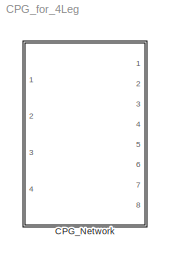
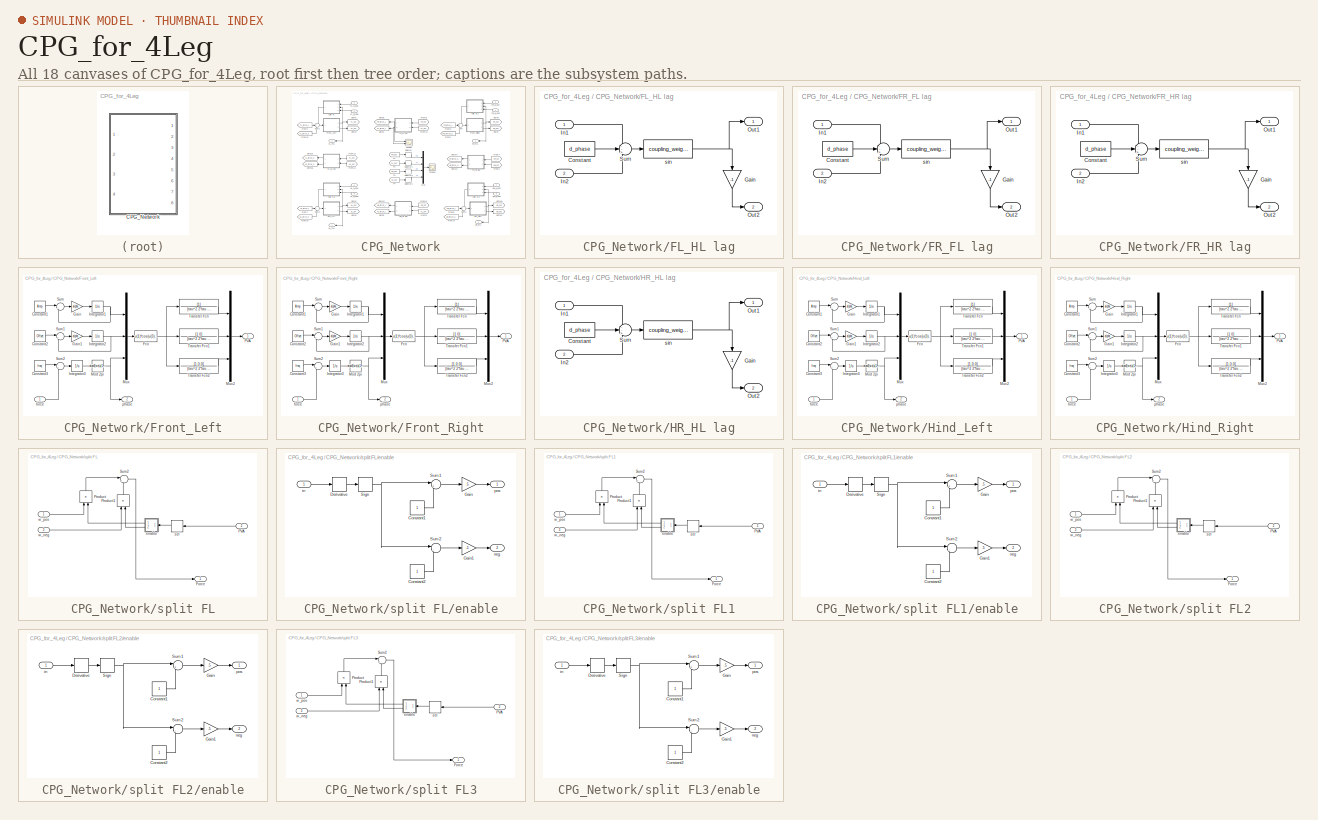
[diagram: thumbnail index - all 18 canvases of the model, root first then tree order]
MODEL CPG_for_4Leg
KIND model
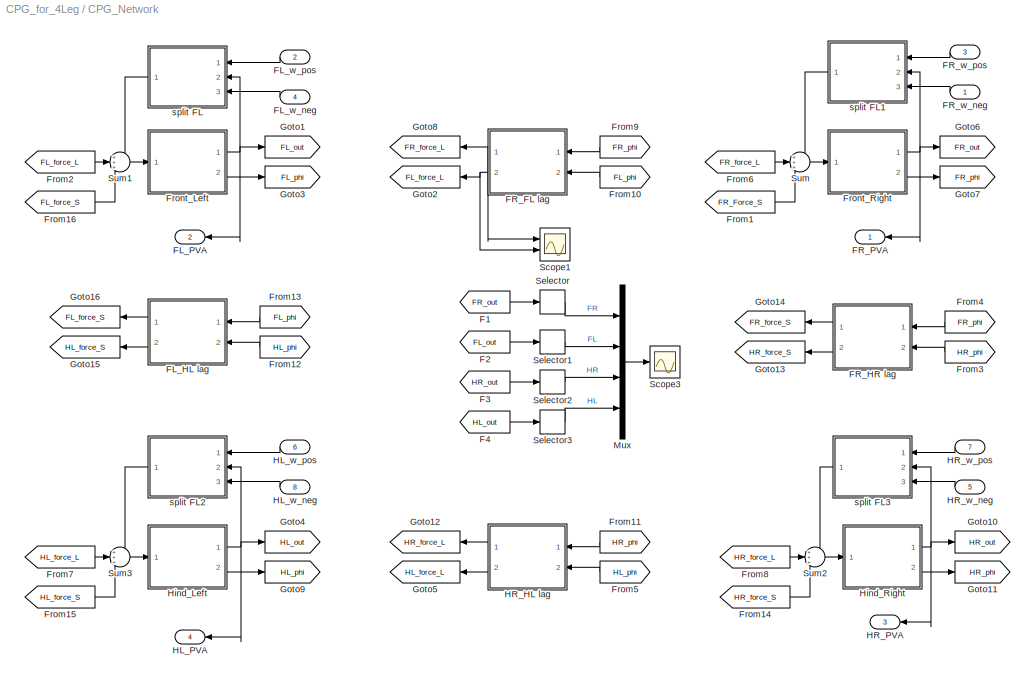
BLOCK [SubSystem] CPG_Network
  FunctionWithSeparateData = off
  MaskHideContents = off
  MinAlgLoopOccurrences = off
  Opaque = off
  Ports = [8, 4]
  PropExecContextOutsideSubsystem = off
  RTWSystemCode = Auto
  RequestExecContextInheritance = off
  SID = 491
BLOCK [From] CPG_Network/F1
  GotoTag = FR_out
  SID = 432
BLOCK [From] CPG_Network/F2
  GotoTag = FL_out
  SID = 433
BLOCK [From] CPG_Network/F3
  GotoTag = HR_out
  SID = 852
BLOCK [From] CPG_Network/F4
  GotoTag = HL_out
  SID = 853
BLOCK [SubSystem] CPG_Network/FL_HL lag
  FunctionWithSeparateData = off
  MaskHideContents = off
  MinAlgLoopOccurrences = off
  Opaque = off
  Ports = [2, 2]
  PropExecContextOutsideSubsystem = off
  RTWSystemCode = Auto
  RequestExecContextInheritance = off
  SID = 839
BLOCK [Constant] CPG_Network/FL_HL lag/Constant
  SID = 842
  Value = d_phase
BLOCK [Gain] CPG_Network/FL_HL lag/Gain
  Gain = -1
  OutDataTypeStr = Inherit: Inherit via internal rule
  ParamDataTypeStr = Inherit: Inherit via internal rule
  SID = 843
  SaturateOnIntegerOverflow = off
BLOCK [Inport] CPG_Network/FL_HL lag/In1
  IconDisplay = Port number
  SID = 840
BLOCK [Inport] CPG_Network/FL_HL lag/In2
  IconDisplay = Port number
  Port = 2
  SID = 841
BLOCK [Outport] CPG_Network/FL_HL lag/Out1
  IconDisplay = Port number
  SID = 846
BLOCK [Outport] CPG_Network/FL_HL lag/Out2
  IconDisplay = Port number
  Port = 2
  SID = 847
BLOCK [Sum] CPG_Network/FL_HL lag/Sum
  IconShape = round
  InputSameDT = off
  Inputs = --+
  OutDataTypeStr = Inherit: Inherit via internal rule
  Ports = [3, 1]
  SID = 844
  SaturateOnIntegerOverflow = off
BLOCK [Fcn] CPG_Network/FL_HL lag/sin
  Expr = coupling_weight*sin(u(1))
  SID = 845
BLOCK [Outport] CPG_Network/FL_PVA
  IconDisplay = Port number
  Port = 2
  SID = 522
BLOCK [Inport] CPG_Network/FL_w_neg
  IconDisplay = Port number
  Port = 4
  SID = 684
BLOCK [Inport] CPG_Network/FL_w_pos
  IconDisplay = Port number
  Port = 2
  SID = 683
BLOCK [SubSystem] CPG_Network/FR_FL lag
  FunctionWithSeparateData = off
  MaskHideContents = off
  MinAlgLoopOccurrences = off
  Opaque = off
  Ports = [2, 2]
  PropExecContextOutsideSubsystem = off
  RTWSystemCode = Auto
  RequestExecContextInheritance = off
  SID = 445
BLOCK [Constant] CPG_Network/FR_FL lag/Constant
  SID = 448
  Value = d_phase
BLOCK [Gain] CPG_Network/FR_FL lag/Gain
  Gain = -1
  OutDataTypeStr = Inherit: Inherit via internal rule
  ParamDataTypeStr = Inherit: Inherit via internal rule
  SID = 449
  SaturateOnIntegerOverflow = off
BLOCK [Inport] CPG_Network/FR_FL lag/In1
  IconDisplay = Port number
  SID = 446
BLOCK [Inport] CPG_Network/FR_FL lag/In2
  IconDisplay = Port number
  Port = 2
  SID = 447
BLOCK [Outport] CPG_Network/FR_FL lag/Out1
  IconDisplay = Port number
  SID = 452
BLOCK [Outport] CPG_Network/FR_FL lag/Out2
  IconDisplay = Port number
  Port = 2
  SID = 453
BLOCK [Sum] CPG_Network/FR_FL lag/Sum
  IconShape = round
  InputSameDT = off
  Inputs = --+
  OutDataTypeStr = Inherit: Inherit via internal rule
  Ports = [3, 1]
  SID = 450
  SaturateOnIntegerOverflow = off
BLOCK [Fcn] CPG_Network/FR_FL lag/sin
  Expr = coupling_weight*sin(u(1))
  SID = 451
BLOCK [SubSystem] CPG_Network/FR_HR lag
  FunctionWithSeparateData = off
  MaskHideContents = off
  MinAlgLoopOccurrences = off
  Opaque = off
  Ports = [2, 2]
  PropExecContextOutsideSubsystem = off
  RTWSystemCode = Auto
  RequestExecContextInheritance = off
  SID = 826
BLOCK [Constant] CPG_Network/FR_HR lag/Constant
  SID = 829
  Value = d_phase
BLOCK [Gain] CPG_Network/FR_HR lag/Gain
  Gain = -1
  OutDataTypeStr = Inherit: Inherit via internal rule
  ParamDataTypeStr = Inherit: Inherit via internal rule
  SID = 830
  SaturateOnIntegerOverflow = off
BLOCK [Inport] CPG_Network/FR_HR lag/In1
  IconDisplay = Port number
  SID = 827
BLOCK [Inport] CPG_Network/FR_HR lag/In2
  IconDisplay = Port number
  Port = 2
  SID = 828
BLOCK [Outport] CPG_Network/FR_HR lag/Out1
  IconDisplay = Port number
  SID = 833
BLOCK [Outport] CPG_Network/FR_HR lag/Out2
  IconDisplay = Port number
  Port = 2
  SID = 834
BLOCK [Sum] CPG_Network/FR_HR lag/Sum
  IconShape = round
  InputSameDT = off
  Inputs = --+
  OutDataTypeStr = Inherit: Inherit via internal rule
  Ports = [3, 1]
  SID = 831
  SaturateOnIntegerOverflow = off
BLOCK [Fcn] CPG_Network/FR_HR lag/sin
  Expr = coupling_weight*sin(u(1))
  SID = 832
BLOCK [Outport] CPG_Network/FR_PVA
  IconDisplay = Port number
  SID = 521
BLOCK [Inport] CPG_Network/FR_w_neg
  IconDisplay = Port number
  SID = 669
BLOCK [Inport] CPG_Network/FR_w_pos
  IconDisplay = Port number
  Port = 3
  SID = 668
BLOCK [From] CPG_Network/From1
  GotoTag = FR_Force_S
  SID = 919
BLOCK [From] CPG_Network/From10
  GotoTag = FL_phi
  SID = 434
BLOCK [From] CPG_Network/From11
  GotoTag = HR_phi
  SID = 716
BLOCK [From] CPG_Network/From12
  GotoTag = HL_phi
  SID = 848
BLOCK [From] CPG_Network/From13
  GotoTag = FL_phi
  SID = 849
BLOCK [From] CPG_Network/From14
  GotoTag = HR_force_S
  SID = 920
BLOCK [From] CPG_Network/From15
  GotoTag = HL_force_S
  SID = 921
BLOCK [From] CPG_Network/From16
  GotoTag = FL_force_S
  SID = 922
BLOCK [From] CPG_Network/From2
  GotoTag = FL_force_L
  SID = 435
BLOCK [From] CPG_Network/From3
  GotoTag = HR_phi
  SID = 835
BLOCK [From] CPG_Network/From4
  GotoTag = FR_phi
  SID = 836
BLOCK [From] CPG_Network/From5
  GotoTag = HL_phi
  SID = 713
BLOCK [From] CPG_Network/From6
  GotoTag = FR_force_L
  SID = 436
BLOCK [From] CPG_Network/From7
  GotoTag = HL_force_L
  SID = 714
BLOCK [From] CPG_Network/From8
  GotoTag = HR_force_L
  SID = 715
BLOCK [From] CPG_Network/From9
  GotoTag = FR_phi
  SID = 437
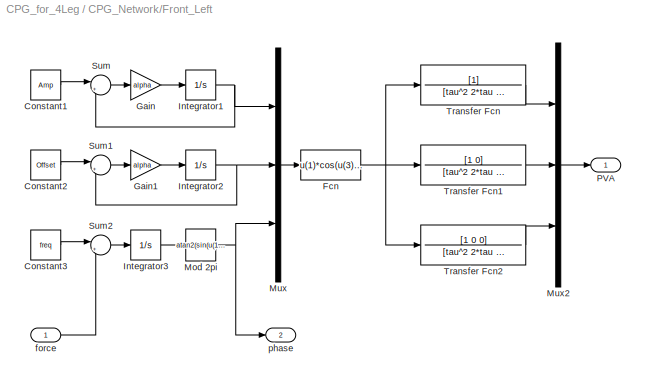
BLOCK [SubSystem] CPG_Network/Front_Left
  FunctionWithSeparateData = off
  MaskHideContents = off
  MinAlgLoopOccurrences = off
  Opaque = off
  Ports = [1, 2]
  PropExecContextOutsideSubsystem = off
  RTWSystemCode = Auto
  RequestExecContextInheritance = off
  SID = 527
BLOCK [Constant] CPG_Network/Front_Left/Constant1
  SID = 529
  Value = Amp
BLOCK [Constant] CPG_Network/Front_Left/Constant2
  SID = 530
  Value = Offset
BLOCK [Constant] CPG_Network/Front_Left/Constant3
  SID = 531
  Value = freq
BLOCK [Fcn] CPG_Network/Front_Left/Fcn
  Expr = u(1)*cos(u(3))+u(2)
  SID = 532
BLOCK [Gain] CPG_Network/Front_Left/Gain
  Gain = alpha
  OutDataTypeStr = Inherit: Inherit via internal rule
  ParamDataTypeStr = Inherit: Inherit via internal rule
  SID = 533
  SaturateOnIntegerOverflow = off
BLOCK [Gain] CPG_Network/Front_Left/Gain1
  Gain = alpha
  OutDataTypeStr = Inherit: Inherit via internal rule
  ParamDataTypeStr = Inherit: Inherit via internal rule
  SID = 534
  SaturateOnIntegerOverflow = off
BLOCK [Integrator] CPG_Network/Front_Left/Integrator1
  Ports = [1, 1]
  SID = 535
BLOCK [Integrator] CPG_Network/Front_Left/Integrator2
  Ports = [1, 1]
  SID = 536
BLOCK [Integrator] CPG_Network/Front_Left/Integrator3
  InitialCondition = init_phi + 0.01*rand
  Ports = [1, 1]
  SID = 537
BLOCK [Fcn] CPG_Network/Front_Left/Mod 2pi
  Expr = atan2(sin(u(1)-pi),cos(u(1)-pi))+pi
  SID = 538
BLOCK [Mux] CPG_Network/Front_Left/Mux
  DisplayOption = bar
  Inputs = 3
  Ports = [3, 1]
  SID = 539
BLOCK [Mux] CPG_Network/Front_Left/Mux2
  DisplayOption = bar
  Inputs = 3
  Ports = [3, 1]
  SID = 540
BLOCK [Outport] CPG_Network/Front_Left/PVA
  IconDisplay = Port number
  SID = 547
BLOCK [Sum] CPG_Network/Front_Left/Sum
  IconShape = round
  InputSameDT = off
  Inputs = |+-
  OutDataTypeStr = Inherit: Inherit via internal rule
  Ports = [2, 1]
  SID = 541
  SaturateOnIntegerOverflow = off
BLOCK [Sum] CPG_Network/Front_Left/Sum1
  IconShape = round
  InputSameDT = off
  Inputs = |+-
  OutDataTypeStr = Inherit: Inherit via internal rule
  Ports = [2, 1]
  SID = 542
  SaturateOnIntegerOverflow = off
BLOCK [Sum] CPG_Network/Front_Left/Sum2
  IconShape = round
  InputSameDT = off
  Inputs = |++
  OutDataTypeStr = Inherit: Inherit via internal rule
  Ports = [2, 1]
  SID = 543
  SaturateOnIntegerOverflow = off
BLOCK [TransferFcn] CPG_Network/Front_Left/Transfer Fcn
  Denominator = [tau^2 2*tau 1]
  SID = 544
BLOCK [TransferFcn] CPG_Network/Front_Left/Transfer Fcn1
  Denominator = [tau^2 2*tau 1]
  Numerator = [1 0]
  SID = 545
BLOCK [TransferFcn] CPG_Network/Front_Left/Transfer Fcn2
  Denominator = [tau^2 2*tau 1]
  Numerator = [1 0 0]
  SID = 546
BLOCK [Inport] CPG_Network/Front_Left/force
  IconDisplay = Port number
  SID = 528
BLOCK [Outport] CPG_Network/Front_Left/phase
  IconDisplay = Port number
  Port = 2
  SID = 548
BLOCK [SubSystem] CPG_Network/Front_Right
  FunctionWithSeparateData = off
  MaskHideContents = off
  MinAlgLoopOccurrences = off
  Opaque = off
  Ports = [1, 2]
  PropExecContextOutsideSubsystem = off
  RTWSystemCode = Auto
  RequestExecContextInheritance = off
  SID = 454
BLOCK [Constant] CPG_Network/Front_Right/Constant1
  SID = 457
  Value = Amp
BLOCK [Constant] CPG_Network/Front_Right/Constant2
  SID = 458
  Value = Offset
BLOCK [Constant] CPG_Network/Front_Right/Constant3
  SID = 498
  Value = freq
BLOCK [Fcn] CPG_Network/Front_Right/Fcn
  Expr = u(1)*cos(u(3))+u(2)
  SID = 459
BLOCK [Gain] CPG_Network/Front_Right/Gain
  Gain = alpha
  OutDataTypeStr = Inherit: Inherit via internal rule
  ParamDataTypeStr = Inherit: Inherit via internal rule
  SID = 460
  SaturateOnIntegerOverflow = off
BLOCK [Gain] CPG_Network/Front_Right/Gain1
  Gain = alpha
  OutDataTypeStr = Inherit: Inherit via internal rule
  ParamDataTypeStr = Inherit: Inherit via internal rule
  SID = 461
  SaturateOnIntegerOverflow = off
BLOCK [Integrator] CPG_Network/Front_Right/Integrator1
  Ports = [1, 1]
  SID = 462
BLOCK [Integrator] CPG_Network/Front_Right/Integrator2
  Ports = [1, 1]
  SID = 463
BLOCK [Integrator] CPG_Network/Front_Right/Integrator3
  InitialCondition = init_phi + 0.01*rand
  Ports = [1, 1]
  SID = 464
BLOCK [Fcn] CPG_Network/Front_Right/Mod 2pi
  Expr = atan2(sin(u(1)-pi),cos(u(1)-pi))+pi
  SID = 465
BLOCK [Mux] CPG_Network/Front_Right/Mux
  DisplayOption = bar
  Inputs = 3
  Ports = [3, 1]
  SID = 466
BLOCK [Mux] CPG_Network/Front_Right/Mux2
  DisplayOption = bar
  Inputs = 3
  Ports = [3, 1]
  SID = 492
BLOCK [Outport] CPG_Network/Front_Right/PVA
  IconDisplay = Port number
  SID = 497
BLOCK [Sum] CPG_Network/Front_Right/Sum
  IconShape = round
  InputSameDT = off
  Inputs = |+-
  OutDataTypeStr = Inherit: Inherit via internal rule
  Ports = [2, 1]
  SID = 467
  SaturateOnIntegerOverflow = off
BLOCK [Sum] CPG_Network/Front_Right/Sum1
  IconShape = round
  InputSameDT = off
  Inputs = |+-
  OutDataTypeStr = Inherit: Inherit via internal rule
  Ports = [2, 1]
  SID = 468
  SaturateOnIntegerOverflow = off
BLOCK [Sum] CPG_Network/Front_Right/Sum2
  IconShape = round
  InputSameDT = off
  Inputs = |++
  OutDataTypeStr = Inherit: Inherit via internal rule
  Ports = [2, 1]
  SID = 469
  SaturateOnIntegerOverflow = off
BLOCK [TransferFcn] CPG_Network/Front_Right/Transfer Fcn
  Denominator = [tau^2 2*tau 1]
  SID = 494
BLOCK [TransferFcn] CPG_Network/Front_Right/Transfer Fcn1
  Denominator = [tau^2 2*tau 1]
  Numerator = [1 0]
  SID = 495
BLOCK [TransferFcn] CPG_Network/Front_Right/Transfer Fcn2
  Denominator = [tau^2 2*tau 1]
  Numerator = [1 0 0]
  SID = 496
BLOCK [Inport] CPG_Network/Front_Right/force
  IconDisplay = Port number
  SID = 455
BLOCK [Outport] CPG_Network/Front_Right/phase
  IconDisplay = Port number
  Port = 2
  SID = 471
BLOCK [Goto] CPG_Network/Goto1
  GotoTag = FL_out
  SID = 438
BLOCK [Goto] CPG_Network/Goto10
  GotoTag = HR_out
  SID = 764
BLOCK [Goto] CPG_Network/Goto11
  GotoTag = HR_phi
  SID = 765
BLOCK [Goto] CPG_Network/Goto12
  GotoTag = HR_force_L
  SID = 766
BLOCK [Goto] CPG_Network/Goto13
  GotoTag = HR_force_S
  SID = 837
BLOCK [Goto] CPG_Network/Goto14
  GotoTag = FR_force_S
  SID = 838
BLOCK [Goto] CPG_Network/Goto15
  GotoTag = HL_force_S
  SID = 850
BLOCK [Goto] CPG_Network/Goto16
  GotoTag = FL_force_S
  SID = 851
BLOCK [Goto] CPG_Network/Goto2
  GotoTag = FL_force_L
  SID = 439
BLOCK [Goto] CPG_Network/Goto3
  GotoTag = FL_phi
  SID = 440
BLOCK [Goto] CPG_Network/Goto4
  GotoTag = HL_out
  SID = 761
BLOCK [Goto] CPG_Network/Goto5
  GotoTag = HL_force_L
  SID = 762
BLOCK [Goto] CPG_Network/Goto6
  GotoTag = FR_out
  SID = 441
BLOCK [Goto] CPG_Network/Goto7
  GotoTag = FR_phi
  SID = 442
BLOCK [Goto] CPG_Network/Goto8
  GotoTag = FR_force_L
  SID = 443
BLOCK [Goto] CPG_Network/Goto9
  GotoTag = HL_phi
  SID = 763
BLOCK [Outport] CPG_Network/HL_PVA
  IconDisplay = Port number
  Port = 4
  SID = 825
BLOCK [Inport] CPG_Network/HL_w_neg
  IconDisplay = Port number
  Port = 8
  SID = 710
BLOCK [Inport] CPG_Network/HL_w_pos
  IconDisplay = Port number
  Port = 6
  SID = 708
BLOCK [SubSystem] CPG_Network/HR_HL lag
  FunctionWithSeparateData = off
  MaskHideContents = off
  MinAlgLoopOccurrences = off
  Opaque = off
  Ports = [2, 2]
  PropExecContextOutsideSubsystem = off
  RTWSystemCode = Auto
  RequestExecContextInheritance = off
  SID = 768
BLOCK [Constant] CPG_Network/HR_HL lag/Constant
  SID = 771
  Value = d_phase
BLOCK [Gain] CPG_Network/HR_HL lag/Gain
  Gain = -1
  OutDataTypeStr = Inherit: Inherit via internal rule
  ParamDataTypeStr = Inherit: Inherit via internal rule
  SID = 772
  SaturateOnIntegerOverflow = off
BLOCK [Inport] CPG_Network/HR_HL lag/In1
  IconDisplay = Port number
  SID = 769
BLOCK [Inport] CPG_Network/HR_HL lag/In2
  IconDisplay = Port number
  Port = 2
  SID = 770
BLOCK [Outport] CPG_Network/HR_HL lag/Out1
  IconDisplay = Port number
  SID = 775
BLOCK [Outport] CPG_Network/HR_HL lag/Out2
  IconDisplay = Port number
  Port = 2
  SID = 776
BLOCK [Sum] CPG_Network/HR_HL lag/Sum
  IconShape = round
  InputSameDT = off
  Inputs = --+
  OutDataTypeStr = Inherit: Inherit via internal rule
  Ports = [3, 1]
  SID = 773
  SaturateOnIntegerOverflow = off
BLOCK [Fcn] CPG_Network/HR_HL lag/sin
  Expr = coupling_weight*sin(u(1))
  SID = 774
BLOCK [Outport] CPG_Network/HR_PVA
  IconDisplay = Port number
  Port = 3
  SID = 824
BLOCK [Inport] CPG_Network/HR_w_neg
  IconDisplay = Port number
  Port = 5
  SID = 707
BLOCK [Inport] CPG_Network/HR_w_pos
  IconDisplay = Port number
  Port = 7
  SID = 709
BLOCK [SubSystem] CPG_Network/Hind_Left
  FunctionWithSeparateData = off
  MaskHideContents = off
  MinAlgLoopOccurrences = off
  Opaque = off
  Ports = [1, 2]
  PropExecContextOutsideSubsystem = off
  RTWSystemCode = Auto
  RequestExecContextInheritance = off
  SID = 717
BLOCK [Constant] CPG_Network/Hind_Left/Constant1
  SID = 719
  Value = Amp
BLOCK [Constant] CPG_Network/Hind_Left/Constant2
  SID = 720
  Value = Offset
BLOCK [Constant] CPG_Network/Hind_Left/Constant3
  SID = 721
  Value = freq
BLOCK [Fcn] CPG_Network/Hind_Left/Fcn
  Expr = u(1)*cos(u(3))+u(2)
  SID = 722
BLOCK [Gain] CPG_Network/Hind_Left/Gain
  Gain = alpha
  OutDataTypeStr = Inherit: Inherit via internal rule
  ParamDataTypeStr = Inherit: Inherit via internal rule
  SID = 723
  SaturateOnIntegerOverflow = off
BLOCK [Gain] CPG_Network/Hind_Left/Gain1
  Gain = alpha
  OutDataTypeStr = Inherit: Inherit via internal rule
  ParamDataTypeStr = Inherit: Inherit via internal rule
  SID = 724
  SaturateOnIntegerOverflow = off
BLOCK [Integrator] CPG_Network/Hind_Left/Integrator1
  Ports = [1, 1]
  SID = 725
BLOCK [Integrator] CPG_Network/Hind_Left/Integrator2
  Ports = [1, 1]
  SID = 726
BLOCK [Integrator] CPG_Network/Hind_Left/Integrator3
  InitialCondition = init_phi + 0.01*rand
  Ports = [1, 1]
  SID = 727
BLOCK [Fcn] CPG_Network/Hind_Left/Mod 2pi
  Expr = atan2(sin(u(1)-pi),cos(u(1)-pi))+pi
  SID = 728
BLOCK [Mux] CPG_Network/Hind_Left/Mux
  DisplayOption = bar
  Inputs = 3
  Ports = [3, 1]
  SID = 729
BLOCK [Mux] CPG_Network/Hind_Left/Mux2
  DisplayOption = bar
  Inputs = 3
  Ports = [3, 1]
  SID = 730
BLOCK [Outport] CPG_Network/Hind_Left/PVA
  IconDisplay = Port number
  SID = 737
BLOCK [Sum] CPG_Network/Hind_Left/Sum
  IconShape = round
  InputSameDT = off
  Inputs = |+-
  OutDataTypeStr = Inherit: Inherit via internal rule
  Ports = [2, 1]
  SID = 731
  SaturateOnIntegerOverflow = off
BLOCK [Sum] CPG_Network/Hind_Left/Sum1
  IconShape = round
  InputSameDT = off
  Inputs = |+-
  OutDataTypeStr = Inherit: Inherit via internal rule
  Ports = [2, 1]
  SID = 732
  SaturateOnIntegerOverflow = off
BLOCK [Sum] CPG_Network/Hind_Left/Sum2
  IconShape = round
  InputSameDT = off
  Inputs = |++
  OutDataTypeStr = Inherit: Inherit via internal rule
  Ports = [2, 1]
  SID = 733
  SaturateOnIntegerOverflow = off
BLOCK [TransferFcn] CPG_Network/Hind_Left/Transfer Fcn
  Denominator = [tau^2 2*tau 1]
  SID = 734
BLOCK [TransferFcn] CPG_Network/Hind_Left/Transfer Fcn1
  Denominator = [tau^2 2*tau 1]
  Numerator = [1 0]
  SID = 735
BLOCK [TransferFcn] CPG_Network/Hind_Left/Transfer Fcn2
  Denominator = [tau^2 2*tau 1]
  Numerator = [1 0 0]
  SID = 736
BLOCK [Inport] CPG_Network/Hind_Left/force
  IconDisplay = Port number
  SID = 718
BLOCK [Outport] CPG_Network/Hind_Left/phase
  IconDisplay = Port number
  Port = 2
  SID = 738
BLOCK [SubSystem] CPG_Network/Hind_Right
  FunctionWithSeparateData = off
  MaskHideContents = off
  MinAlgLoopOccurrences = off
  Opaque = off
  Ports = [1, 2]
  PropExecContextOutsideSubsystem = off
  RTWSystemCode = Auto
  RequestExecContextInheritance = off
  SID = 739
BLOCK [Constant] CPG_Network/Hind_Right/Constant1
  SID = 741
  Value = Amp
BLOCK [Constant] CPG_Network/Hind_Right/Constant2
  SID = 742
  Value = Offset
BLOCK [Constant] CPG_Network/Hind_Right/Constant3
  SID = 743
  Value = freq
BLOCK [Fcn] CPG_Network/Hind_Right/Fcn
  Expr = u(1)*cos(u(3))+u(2)
  SID = 744
BLOCK [Gain] CPG_Network/Hind_Right/Gain
  Gain = alpha
  OutDataTypeStr = Inherit: Inherit via internal rule
  ParamDataTypeStr = Inherit: Inherit via internal rule
  SID = 745
  SaturateOnIntegerOverflow = off
BLOCK [Gain] CPG_Network/Hind_Right/Gain1
  Gain = alpha
  OutDataTypeStr = Inherit: Inherit via internal rule
  ParamDataTypeStr = Inherit: Inherit via internal rule
  SID = 746
  SaturateOnIntegerOverflow = off
BLOCK [Integrator] CPG_Network/Hind_Right/Integrator1
  Ports = [1, 1]
  SID = 747
BLOCK [Integrator] CPG_Network/Hind_Right/Integrator2
  Ports = [1, 1]
  SID = 748
BLOCK [Integrator] CPG_Network/Hind_Right/Integrator3
  InitialCondition = init_phi + 0.01*rand
  Ports = [1, 1]
  SID = 749
BLOCK [Fcn] CPG_Network/Hind_Right/Mod 2pi
  Expr = atan2(sin(u(1)-pi),cos(u(1)-pi))+pi
  SID = 750
BLOCK [Mux] CPG_Network/Hind_Right/Mux
  DisplayOption = bar
  Inputs = 3
  Ports = [3, 1]
  SID = 751
BLOCK [Mux] CPG_Network/Hind_Right/Mux2
  DisplayOption = bar
  Inputs = 3
  Ports = [3, 1]
  SID = 752
BLOCK [Outport] CPG_Network/Hind_Right/PVA
  IconDisplay = Port number
  SID = 759
BLOCK [Sum] CPG_Network/Hind_Right/Sum
  IconShape = round
  InputSameDT = off
  Inputs = |+-
  OutDataTypeStr = Inherit: Inherit via internal rule
  Ports = [2, 1]
  SID = 753
  SaturateOnIntegerOverflow = off
BLOCK [Sum] CPG_Network/Hind_Right/Sum1
  IconShape = round
  InputSameDT = off
  Inputs = |+-
  OutDataTypeStr = Inherit: Inherit via internal rule
  Ports = [2, 1]
  SID = 754
  SaturateOnIntegerOverflow = off
BLOCK [Sum] CPG_Network/Hind_Right/Sum2
  IconShape = round
  InputSameDT = off
  Inputs = |++
  OutDataTypeStr = Inherit: Inherit via internal rule
  Ports = [2, 1]
  SID = 755
  SaturateOnIntegerOverflow = off
BLOCK [TransferFcn] CPG_Network/Hind_Right/Transfer Fcn
  Denominator = [tau^2 2*tau 1]
  SID = 756
BLOCK [TransferFcn] CPG_Network/Hind_Right/Transfer Fcn1
  Denominator = [tau^2 2*tau 1]
  Numerator = [1 0]
  SID = 757
BLOCK [TransferFcn] CPG_Network/Hind_Right/Transfer Fcn2
  Denominator = [tau^2 2*tau 1]
  Numerator = [1 0 0]
  SID = 758
BLOCK [Inport] CPG_Network/Hind_Right/force
  IconDisplay = Port number
  SID = 740
BLOCK [Outport] CPG_Network/Hind_Right/phase
  IconDisplay = Port number
  Port = 2
  SID = 760
BLOCK [Mux] CPG_Network/Mux
  DisplayOption = bar
  Ports = [4, 1]
  SID = 444
BLOCK [Scope] CPG_Network/Scope1
  DataFormat = StructureWithTime
  Floating = off
  LegendLocations = 0.93151     0.92901    0.074028    0.025103\n0.92775     0.45864    0.074028    0.025103
  LimitDataPoints = off
  NumInputPorts = 2
  Ports = [2]
  SID = 923
  SampleTime = 0
  SaveName = Output1
  SaveToWorkspace = on
  ShowLegends = on
  TimeRange = 10
  YMax = 2~5
  YMin = 0~-5
  ZoomMode = xonly
BLOCK [Scope] CPG_Network/Scope3
  DataFormat = StructureWithTime
  Floating = off
  LegendLocations = 0.91654     0.87104     0.04625    0.083025
  LimitDataPoints = off
  NumInputPorts = 1
  Ports = [1]
  SID = 490
  SampleTime = 0
  SaveName = Output
  SaveToWorkspace = on
  ShowLegends = on
  TimeRange = 10
  YMax = 2
  YMin = 0
  ZoomMode = xonly
BLOCK [Selector] CPG_Network/Selector
  IndexOptions = Index vector (dialog)
  Indices = [1]
  InputPortWidth = 3
  OutputSizes = 1
  Ports = [1, 1]
  SID = 549
BLOCK [Selector] CPG_Network/Selector1
  IndexOptions = Index vector (dialog)
  Indices = [1]
  InputPortWidth = 3
  OutputSizes = 1
  Ports = [1, 1]
  SID = 550
BLOCK [Selector] CPG_Network/Selector2
  IndexOptions = Index vector (dialog)
  Indices = [1]
  InputPortWidth = 3
  OutputSizes = 1
  Ports = [1, 1]
  SID = 854
BLOCK [Selector] CPG_Network/Selector3
  IndexOptions = Index vector (dialog)
  Indices = [1]
  InputPortWidth = 3
  OutputSizes = 1
  Ports = [1, 1]
  SID = 855
BLOCK [Sum] CPG_Network/Sum
  IconShape = round
  InputSameDT = off
  Inputs = +++
  OutDataTypeStr = Inherit: Inherit via internal rule
  Ports = [3, 1]
  SID = 523
  SaturateOnIntegerOverflow = off
BLOCK [Sum] CPG_Network/Sum1
  IconShape = round
  InputSameDT = off
  Inputs = +++
  OutDataTypeStr = Inherit: Inherit via internal rule
  Ports = [3, 1]
  SID = 525
  SaturateOnIntegerOverflow = off
BLOCK [Sum] CPG_Network/Sum2
  IconShape = round
  InputSameDT = off
  Inputs = +++
  OutDataTypeStr = Inherit: Inherit via internal rule
  Ports = [3, 1]
  SID = 780
  SaturateOnIntegerOverflow = off
BLOCK [Sum] CPG_Network/Sum3
  IconShape = round
  InputSameDT = off
  Inputs = +++
  OutDataTypeStr = Inherit: Inherit via internal rule
  Ports = [3, 1]
  SID = 781
  SaturateOnIntegerOverflow = off
BLOCK [SubSystem] CPG_Network/split FL
  FunctionWithSeparateData = off
  MaskHideContents = off
  MinAlgLoopOccurrences = off
  Opaque = off
  Ports = [3, 1]
  PropExecContextOutsideSubsystem = off
  RTWSystemCode = Auto
  RequestExecContextInheritance = off
  SID = 685
BLOCK [Outport] CPG_Network/split FL/Force
  IconDisplay = Port number
  SID = 705
BLOCK [Inport] CPG_Network/split FL/PVA
  IconDisplay = Port number
  Port = 2
  SID = 687
BLOCK [Product] CPG_Network/split FL/Product
  InputSameDT = off
  OutDataTypeStr = Inherit: Inherit via internal rule
  Ports = [2, 1]
  SID = 689
  SaturateOnIntegerOverflow = off
BLOCK [Product] CPG_Network/split FL/Product1
  InputSameDT = off
  OutDataTypeStr = Inherit: Inherit via internal rule
  Ports = [2, 1]
  SID = 690
  SaturateOnIntegerOverflow = off
BLOCK [Sum] CPG_Network/split FL/Sum2
  IconShape = round
  InputSameDT = off
  Inputs = |++
  OutDataTypeStr = Inherit: Inherit via internal rule
  Ports = [2, 1]
  SID = 691
  SaturateOnIntegerOverflow = off
BLOCK [SubSystem] CPG_Network/split FL/enable
  FunctionWithSeparateData = off
  MaskHideContents = off
  MinAlgLoopOccurrences = off
  Opaque = off
  Ports = [1, 2]
  PropExecContextOutsideSubsystem = off
  RTWSystemCode = Auto
  RequestExecContextInheritance = off
  SID = 692
BLOCK [Constant] CPG_Network/split FL/enable/Constant1
  SID = 694
BLOCK [Constant] CPG_Network/split FL/enable/Constant2
  SID = 695
BLOCK [Derivative] CPG_Network/split FL/enable/Derivative
  SID = 696
BLOCK [Gain] CPG_Network/split FL/enable/Gain
  Gain = .5
  OutDataTypeStr = Inherit: Inherit via internal rule
  ParamDataTypeStr = Inherit: Inherit via internal rule
  SID = 697
  SaturateOnIntegerOverflow = off
BLOCK [Gain] CPG_Network/split FL/enable/Gain1
  Gain = .5
  OutDataTypeStr = Inherit: Inherit via internal rule
  ParamDataTypeStr = Inherit: Inherit via internal rule
  SID = 698
  SaturateOnIntegerOverflow = off
BLOCK [Signum] CPG_Network/split FL/enable/Sign
  SID = 699
BLOCK [Sum] CPG_Network/split FL/enable/Sum1
  IconShape = round
  InputSameDT = off
  Inputs = |++
  OutDataTypeStr = Inherit: Inherit via internal rule
  Ports = [2, 1]
  SID = 700
  SaturateOnIntegerOverflow = off
BLOCK [Sum] CPG_Network/split FL/enable/Sum2
  IconShape = round
  InputSameDT = off
  Inputs = |-+
  OutDataTypeStr = Inherit: Inherit via internal rule
  Ports = [2, 1]
  SID = 701
  SaturateOnIntegerOverflow = off
BLOCK [Inport] CPG_Network/split FL/enable/in
  IconDisplay = Port number
  SID = 693
BLOCK [Outport] CPG_Network/split FL/enable/neg
  IconDisplay = Port number
  Port = 2
  SID = 703
BLOCK [Outport] CPG_Network/split FL/enable/pos
  IconDisplay = Port number
  SID = 702
BLOCK [Selector] CPG_Network/split FL/sel
  IndexOptions = Index vector (dialog)
  Indices = [2]
  InputPortWidth = 3
  OutputSizes = 1
  Ports = [1, 1]
  SID = 704
BLOCK [Inport] CPG_Network/split FL/w_neg
  IconDisplay = Port number
  Port = 3
  SID = 688
BLOCK [Inport] CPG_Network/split FL/w_pos
  IconDisplay = Port number
  SID = 686
BLOCK [SubSystem] CPG_Network/split FL1
  FunctionWithSeparateData = off
  MaskHideContents = off
  MinAlgLoopOccurrences = off
  Opaque = off
  Ports = [3, 1]
  PropExecContextOutsideSubsystem = off
  RTWSystemCode = Auto
  RequestExecContextInheritance = off
  SID = 856
BLOCK [Outport] CPG_Network/split FL1/Force
  IconDisplay = Port number
  SID = 876
BLOCK [Inport] CPG_Network/split FL1/PVA
  IconDisplay = Port number
  Port = 2
  SID = 858
BLOCK [Product] CPG_Network/split FL1/Product
  InputSameDT = off
  OutDataTypeStr = Inherit: Inherit via internal rule
  Ports = [2, 1]
  SID = 860
  SaturateOnIntegerOverflow = off
BLOCK [Product] CPG_Network/split FL1/Product1
  InputSameDT = off
  OutDataTypeStr = Inherit: Inherit via internal rule
  Ports = [2, 1]
  SID = 861
  SaturateOnIntegerOverflow = off
BLOCK [Sum] CPG_Network/split FL1/Sum2
  IconShape = round
  InputSameDT = off
  Inputs = |++
  OutDataTypeStr = Inherit: Inherit via internal rule
  Ports = [2, 1]
  SID = 862
  SaturateOnIntegerOverflow = off
BLOCK [SubSystem] CPG_Network/split FL1/enable
  FunctionWithSeparateData = off
  MaskHideContents = off
  MinAlgLoopOccurrences = off
  Opaque = off
  Ports = [1, 2]
  PropExecContextOutsideSubsystem = off
  RTWSystemCode = Auto
  RequestExecContextInheritance = off
  SID = 863
BLOCK [Constant] CPG_Network/split FL1/enable/Constant1
  SID = 865
BLOCK [Constant] CPG_Network/split FL1/enable/Constant2
  SID = 866
BLOCK [Derivative] CPG_Network/split FL1/enable/Derivative
  SID = 867
BLOCK [Gain] CPG_Network/split FL1/enable/Gain
  Gain = .5
  OutDataTypeStr = Inherit: Inherit via internal rule
  ParamDataTypeStr = Inherit: Inherit via internal rule
  SID = 868
  SaturateOnIntegerOverflow = off
BLOCK [Gain] CPG_Network/split FL1/enable/Gain1
  Gain = .5
  OutDataTypeStr = Inherit: Inherit via internal rule
  ParamDataTypeStr = Inherit: Inherit via internal rule
  SID = 869
  SaturateOnIntegerOverflow = off
BLOCK [Signum] CPG_Network/split FL1/enable/Sign
  SID = 870
BLOCK [Sum] CPG_Network/split FL1/enable/Sum1
  IconShape = round
  InputSameDT = off
  Inputs = |++
  OutDataTypeStr = Inherit: Inherit via internal rule
  Ports = [2, 1]
  SID = 871
  SaturateOnIntegerOverflow = off
BLOCK [Sum] CPG_Network/split FL1/enable/Sum2
  IconShape = round
  InputSameDT = off
  Inputs = |-+
  OutDataTypeStr = Inherit: Inherit via internal rule
  Ports = [2, 1]
  SID = 872
  SaturateOnIntegerOverflow = off
BLOCK [Inport] CPG_Network/split FL1/enable/in
  IconDisplay = Port number
  SID = 864
BLOCK [Outport] CPG_Network/split FL1/enable/neg
  IconDisplay = Port number
  Port = 2
  SID = 874
BLOCK [Outport] CPG_Network/split FL1/enable/pos
  IconDisplay = Port number
  SID = 873
BLOCK [Selector] CPG_Network/split FL1/sel
  IndexOptions = Index vector (dialog)
  Indices = [2]
  InputPortWidth = 3
  OutputSizes = 1
  Ports = [1, 1]
  SID = 875
BLOCK [Inport] CPG_Network/split FL1/w_neg
  IconDisplay = Port number
  Port = 3
  SID = 859
BLOCK [Inport] CPG_Network/split FL1/w_pos
  IconDisplay = Port number
  SID = 857
BLOCK [SubSystem] CPG_Network/split FL2
  FunctionWithSeparateData = off
  MaskHideContents = off
  MinAlgLoopOccurrences = off
  Opaque = off
  Ports = [3, 1]
  PropExecContextOutsideSubsystem = off
  RTWSystemCode = Auto
  RequestExecContextInheritance = off
  SID = 877
BLOCK [Outport] CPG_Network/split FL2/Force
  IconDisplay = Port number
  SID = 897
BLOCK [Inport] CPG_Network/split FL2/PVA
  IconDisplay = Port number
  Port = 2
  SID = 879
BLOCK [Product] CPG_Network/split FL2/Product
  InputSameDT = off
  OutDataTypeStr = Inherit: Inherit via internal rule
  Ports = [2, 1]
  SID = 881
  SaturateOnIntegerOverflow = off
BLOCK [Product] CPG_Network/split FL2/Product1
  InputSameDT = off
  OutDataTypeStr = Inherit: Inherit via internal rule
  Ports = [2, 1]
  SID = 882
  SaturateOnIntegerOverflow = off
BLOCK [Sum] CPG_Network/split FL2/Sum2
  IconShape = round
  InputSameDT = off
  Inputs = |++
  OutDataTypeStr = Inherit: Inherit via internal rule
  Ports = [2, 1]
  SID = 883
  SaturateOnIntegerOverflow = off
BLOCK [SubSystem] CPG_Network/split FL2/enable
  FunctionWithSeparateData = off
  MaskHideContents = off
  MinAlgLoopOccurrences = off
  Opaque = off
  Ports = [1, 2]
  PropExecContextOutsideSubsystem = off
  RTWSystemCode = Auto
  RequestExecContextInheritance = off
  SID = 884
BLOCK [Constant] CPG_Network/split FL2/enable/Constant1
  SID = 886
BLOCK [Constant] CPG_Network/split FL2/enable/Constant2
  SID = 887
BLOCK [Derivative] CPG_Network/split FL2/enable/Derivative
  SID = 888
BLOCK [Gain] CPG_Network/split FL2/enable/Gain
  Gain = .5
  OutDataTypeStr = Inherit: Inherit via internal rule
  ParamDataTypeStr = Inherit: Inherit via internal rule
  SID = 889
  SaturateOnIntegerOverflow = off
BLOCK [Gain] CPG_Network/split FL2/enable/Gain1
  Gain = .5
  OutDataTypeStr = Inherit: Inherit via internal rule
  ParamDataTypeStr = Inherit: Inherit via internal rule
  SID = 890
  SaturateOnIntegerOverflow = off
BLOCK [Signum] CPG_Network/split FL2/enable/Sign
  SID = 891
BLOCK [Sum] CPG_Network/split FL2/enable/Sum1
  IconShape = round
  InputSameDT = off
  Inputs = |++
  OutDataTypeStr = Inherit: Inherit via internal rule
  Ports = [2, 1]
  SID = 892
  SaturateOnIntegerOverflow = off
BLOCK [Sum] CPG_Network/split FL2/enable/Sum2
  IconShape = round
  InputSameDT = off
  Inputs = |-+
  OutDataTypeStr = Inherit: Inherit via internal rule
  Ports = [2, 1]
  SID = 893
  SaturateOnIntegerOverflow = off
BLOCK [Inport] CPG_Network/split FL2/enable/in
  IconDisplay = Port number
  SID = 885
BLOCK [Outport] CPG_Network/split FL2/enable/neg
  IconDisplay = Port number
  Port = 2
  SID = 895
BLOCK [Outport] CPG_Network/split FL2/enable/pos
  IconDisplay = Port number
  SID = 894
BLOCK [Selector] CPG_Network/split FL2/sel
  IndexOptions = Index vector (dialog)
  Indices = [2]
  InputPortWidth = 3
  OutputSizes = 1
  Ports = [1, 1]
  SID = 896
BLOCK [Inport] CPG_Network/split FL2/w_neg
  IconDisplay = Port number
  Port = 3
  SID = 880
BLOCK [Inport] CPG_Network/split FL2/w_pos
  IconDisplay = Port number
  SID = 878
BLOCK [SubSystem] CPG_Network/split FL3
  FunctionWithSeparateData = off
  MaskHideContents = off
  MinAlgLoopOccurrences = off
  Opaque = off
  Ports = [3, 1]
  PropExecContextOutsideSubsystem = off
  RTWSystemCode = Auto
  RequestExecContextInheritance = off
  SID = 898
BLOCK [Outport] CPG_Network/split FL3/Force
  IconDisplay = Port number
  SID = 918
BLOCK [Inport] CPG_Network/split FL3/PVA
  IconDisplay = Port number
  Port = 2
  SID = 900
BLOCK [Product] CPG_Network/split FL3/Product
  InputSameDT = off
  OutDataTypeStr = Inherit: Inherit via internal rule
  Ports = [2, 1]
  SID = 902
  SaturateOnIntegerOverflow = off
BLOCK [Product] CPG_Network/split FL3/Product1
  InputSameDT = off
  OutDataTypeStr = Inherit: Inherit via internal rule
  Ports = [2, 1]
  SID = 903
  SaturateOnIntegerOverflow = off
BLOCK [Sum] CPG_Network/split FL3/Sum2
  IconShape = round
  InputSameDT = off
  Inputs = |++
  OutDataTypeStr = Inherit: Inherit via internal rule
  Ports = [2, 1]
  SID = 904
  SaturateOnIntegerOverflow = off
BLOCK [SubSystem] CPG_Network/split FL3/enable
  FunctionWithSeparateData = off
  MaskHideContents = off
  MinAlgLoopOccurrences = off
  Opaque = off
  Ports = [1, 2]
  PropExecContextOutsideSubsystem = off
  RTWSystemCode = Auto
  RequestExecContextInheritance = off
  SID = 905
BLOCK [Constant] CPG_Network/split FL3/enable/Constant1
  SID = 907
BLOCK [Constant] CPG_Network/split FL3/enable/Constant2
  SID = 908
BLOCK [Derivative] CPG_Network/split FL3/enable/Derivative
  SID = 909
BLOCK [Gain] CPG_Network/split FL3/enable/Gain
  Gain = .5
  OutDataTypeStr = Inherit: Inherit via internal rule
  ParamDataTypeStr = Inherit: Inherit via internal rule
  SID = 910
  SaturateOnIntegerOverflow = off
BLOCK [Gain] CPG_Network/split FL3/enable/Gain1
  Gain = .5
  OutDataTypeStr = Inherit: Inherit via internal rule
  ParamDataTypeStr = Inherit: Inherit via internal rule
  SID = 911
  SaturateOnIntegerOverflow = off
BLOCK [Signum] CPG_Network/split FL3/enable/Sign
  SID = 912
BLOCK [Sum] CPG_Network/split FL3/enable/Sum1
  IconShape = round
  InputSameDT = off
  Inputs = |++
  OutDataTypeStr = Inherit: Inherit via internal rule
  Ports = [2, 1]
  SID = 913
  SaturateOnIntegerOverflow = off
BLOCK [Sum] CPG_Network/split FL3/enable/Sum2
  IconShape = round
  InputSameDT = off
  Inputs = |-+
  OutDataTypeStr = Inherit: Inherit via internal rule
  Ports = [2, 1]
  SID = 914
  SaturateOnIntegerOverflow = off
BLOCK [Inport] CPG_Network/split FL3/enable/in
  IconDisplay = Port number
  SID = 906
BLOCK [Outport] CPG_Network/split FL3/enable/neg
  IconDisplay = Port number
  Port = 2
  SID = 916
BLOCK [Outport] CPG_Network/split FL3/enable/pos
  IconDisplay = Port number
  SID = 915
BLOCK [Selector] CPG_Network/split FL3/sel
  IndexOptions = Index vector (dialog)
  Indices = [2]
  InputPortWidth = 3
  OutputSizes = 1
  Ports = [1, 1]
  SID = 917
BLOCK [Inport] CPG_Network/split FL3/w_neg
  IconDisplay = Port number
  Port = 3
  SID = 901
BLOCK [Inport] CPG_Network/split FL3/w_pos
  IconDisplay = Port number
  SID = 899
LINE CPG_Network/F1:1 -> CPG_Network/Selector:1
LINE CPG_Network/F2:1 -> CPG_Network/Selector1:1
LINE CPG_Network/F3:1 -> CPG_Network/Selector2:1
LINE CPG_Network/F4:1 -> CPG_Network/Selector3:1
LINE CPG_Network/FL_HL lag/Constant:1 -> CPG_Network/FL_HL lag/Sum:2
LINE CPG_Network/FL_HL lag/Gain:1 -> CPG_Network/FL_HL lag/Out2:1
LINE CPG_Network/FL_HL lag/In1:1 -> CPG_Network/FL_HL lag/Sum:1
LINE CPG_Network/FL_HL lag/In2:1 -> CPG_Network/FL_HL lag/Sum:3
LINE CPG_Network/FL_HL lag/Sum:1 -> CPG_Network/FL_HL lag/sin:1
NET CPG_Network/FL_HL lag/sin:1 -> CPG_Network/FL_HL lag/Gain:1, CPG_Network/FL_HL lag/Out1:1
LINE CPG_Network/FL_HL lag:1 -> CPG_Network/Goto16:1
LINE CPG_Network/FL_HL lag:2 -> CPG_Network/Goto15:1
LINE CPG_Network/FL_w_neg:1 -> CPG_Network/split FL:3
LINE CPG_Network/FL_w_pos:1 -> CPG_Network/split FL:1
LINE CPG_Network/FR_FL lag/Constant:1 -> CPG_Network/FR_FL lag/Sum:2
LINE CPG_Network/FR_FL lag/Gain:1 -> CPG_Network/FR_FL lag/Out2:1
LINE CPG_Network/FR_FL lag/In1:1 -> CPG_Network/FR_FL lag/Sum:1
LINE CPG_Network/FR_FL lag/In2:1 -> CPG_Network/FR_FL lag/Sum:3
LINE CPG_Network/FR_FL lag/Sum:1 -> CPG_Network/FR_FL lag/sin:1
NET CPG_Network/FR_FL lag/sin:1 -> CPG_Network/FR_FL lag/Gain:1, CPG_Network/FR_FL lag/Out1:1
NET CPG_Network/FR_FL lag:1 -> CPG_Network/Goto8:1, CPG_Network/Scope1:1
NET CPG_Network/FR_FL lag:2 -> CPG_Network/Goto2:1, CPG_Network/Scope1:2
LINE CPG_Network/FR_HR lag/Constant:1 -> CPG_Network/FR_HR lag/Sum:2
LINE CPG_Network/FR_HR lag/Gain:1 -> CPG_Network/FR_HR lag/Out2:1
LINE CPG_Network/FR_HR lag/In1:1 -> CPG_Network/FR_HR lag/Sum:1
LINE CPG_Network/FR_HR lag/In2:1 -> CPG_Network/FR_HR lag/Sum:3
LINE CPG_Network/FR_HR lag/Sum:1 -> CPG_Network/FR_HR lag/sin:1
NET CPG_Network/FR_HR lag/sin:1 -> CPG_Network/FR_HR lag/Gain:1, CPG_Network/FR_HR lag/Out1:1
LINE CPG_Network/FR_HR lag:1 -> CPG_Network/Goto14:1
LINE CPG_Network/FR_HR lag:2 -> CPG_Network/Goto13:1
LINE CPG_Network/FR_w_neg:1 -> CPG_Network/split FL1:3
LINE CPG_Network/FR_w_pos:1 -> CPG_Network/split FL1:1
LINE CPG_Network/From10:1 -> CPG_Network/FR_FL lag:2
LINE CPG_Network/From11:1 -> CPG_Network/HR_HL lag:1
LINE CPG_Network/From12:1 -> CPG_Network/FL_HL lag:2
LINE CPG_Network/From13:1 -> CPG_Network/FL_HL lag:1
LINE CPG_Network/From14:1 -> CPG_Network/Sum2:3
LINE CPG_Network/From15:1 -> CPG_Network/Sum3:3
LINE CPG_Network/From16:1 -> CPG_Network/Sum1:3
LINE CPG_Network/From1:1 -> CPG_Network/Sum:3
LINE CPG_Network/From2:1 -> CPG_Network/Sum1:2
LINE CPG_Network/From3:1 -> CPG_Network/FR_HR lag:2
LINE CPG_Network/From4:1 -> CPG_Network/FR_HR lag:1
LINE CPG_Network/From5:1 -> CPG_Network/HR_HL lag:2
LINE CPG_Network/From6:1 -> CPG_Network/Sum:2
LINE CPG_Network/From7:1 -> CPG_Network/Sum3:2
LINE CPG_Network/From8:1 -> CPG_Network/Sum2:2
LINE CPG_Network/From9:1 -> CPG_Network/FR_FL lag:1
LINE CPG_Network/Front_Left/Constant1:1 -> CPG_Network/Front_Left/Sum:1
LINE CPG_Network/Front_Left/Constant2:1 -> CPG_Network/Front_Left/Sum1:1
LINE CPG_Network/Front_Left/Constant3:1 -> CPG_Network/Front_Left/Sum2:1
NET CPG_Network/Front_Left/Fcn:1 -> CPG_Network/Front_Left/Transfer Fcn1:1, CPG_Network/Front_Left/Transfer Fcn2:1, CPG_Network/Front_Left/Transfer Fcn:1
LINE CPG_Network/Front_Left/Gain1:1 -> CPG_Network/Front_Left/Integrator2:1
LINE CPG_Network/Front_Left/Gain:1 -> CPG_Network/Front_Left/Integrator1:1
NET CPG_Network/Front_Left/Integrator1:1 -> CPG_Network/Front_Left/Mux:1, CPG_Network/Front_Left/Sum:2
NET CPG_Network/Front_Left/Integrator2:1 -> CPG_Network/Front_Left/Mux:2, CPG_Network/Front_Left/Sum1:2
LINE CPG_Network/Front_Left/Integrator3:1 -> CPG_Network/Front_Left/Mod 2pi:1
NET CPG_Network/Front_Left/Mod 2pi:1 -> CPG_Network/Front_Left/Mux:3, CPG_Network/Front_Left/phase:1
LINE CPG_Network/Front_Left/Mux2:1 -> CPG_Network/Front_Left/PVA:1
LINE CPG_Network/Front_Left/Mux:1 -> CPG_Network/Front_Left/Fcn:1
LINE CPG_Network/Front_Left/Sum1:1 -> CPG_Network/Front_Left/Gain1:1
LINE CPG_Network/Front_Left/Sum2:1 -> CPG_Network/Front_Left/Integrator3:1
LINE CPG_Network/Front_Left/Sum:1 -> CPG_Network/Front_Left/Gain:1
LINE CPG_Network/Front_Left/Transfer Fcn1:1 -> CPG_Network/Front_Left/Mux2:2
LINE CPG_Network/Front_Left/Transfer Fcn2:1 -> CPG_Network/Front_Left/Mux2:3
LINE CPG_Network/Front_Left/Transfer Fcn:1 -> CPG_Network/Front_Left/Mux2:1
LINE CPG_Network/Front_Left/force:1 -> CPG_Network/Front_Left/Sum2:2
NET CPG_Network/Front_Left:1 -> CPG_Network/FL_PVA:1, CPG_Network/Goto1:1, CPG_Network/split FL:2
LINE CPG_Network/Front_Left:2 -> CPG_Network/Goto3:1
LINE CPG_Network/Front_Right/Constant1:1 -> CPG_Network/Front_Right/Sum:1
LINE CPG_Network/Front_Right/Constant2:1 -> CPG_Network/Front_Right/Sum1:1
LINE CPG_Network/Front_Right/Constant3:1 -> CPG_Network/Front_Right/Sum2:1
NET CPG_Network/Front_Right/Fcn:1 -> CPG_Network/Front_Right/Transfer Fcn1:1, CPG_Network/Front_Right/Transfer Fcn2:1, CPG_Network/Front_Right/Transfer Fcn:1
LINE CPG_Network/Front_Right/Gain1:1 -> CPG_Network/Front_Right/Integrator2:1
LINE CPG_Network/Front_Right/Gain:1 -> CPG_Network/Front_Right/Integrator1:1
NET CPG_Network/Front_Right/Integrator1:1 -> CPG_Network/Front_Right/Mux:1, CPG_Network/Front_Right/Sum:2
NET CPG_Network/Front_Right/Integrator2:1 -> CPG_Network/Front_Right/Mux:2, CPG_Network/Front_Right/Sum1:2
LINE CPG_Network/Front_Right/Integrator3:1 -> CPG_Network/Front_Right/Mod 2pi:1
NET CPG_Network/Front_Right/Mod 2pi:1 -> CPG_Network/Front_Right/Mux:3, CPG_Network/Front_Right/phase:1
LINE CPG_Network/Front_Right/Mux2:1 -> CPG_Network/Front_Right/PVA:1
LINE CPG_Network/Front_Right/Mux:1 -> CPG_Network/Front_Right/Fcn:1
LINE CPG_Network/Front_Right/Sum1:1 -> CPG_Network/Front_Right/Gain1:1
LINE CPG_Network/Front_Right/Sum2:1 -> CPG_Network/Front_Right/Integrator3:1
LINE CPG_Network/Front_Right/Sum:1 -> CPG_Network/Front_Right/Gain:1
LINE CPG_Network/Front_Right/Transfer Fcn1:1 -> CPG_Network/Front_Right/Mux2:2
LINE CPG_Network/Front_Right/Transfer Fcn2:1 -> CPG_Network/Front_Right/Mux2:3
LINE CPG_Network/Front_Right/Transfer Fcn:1 -> CPG_Network/Front_Right/Mux2:1
LINE CPG_Network/Front_Right/force:1 -> CPG_Network/Front_Right/Sum2:2
NET CPG_Network/Front_Right:1 -> CPG_Network/FR_PVA:1, CPG_Network/Goto6:1, CPG_Network/split FL1:2
LINE CPG_Network/Front_Right:2 -> CPG_Network/Goto7:1
LINE CPG_Network/HL_w_neg:1 -> CPG_Network/split FL2:3
LINE CPG_Network/HL_w_pos:1 -> CPG_Network/split FL2:1
LINE CPG_Network/HR_HL lag/Constant:1 -> CPG_Network/HR_HL lag/Sum:2
LINE CPG_Network/HR_HL lag/Gain:1 -> CPG_Network/HR_HL lag/Out2:1
LINE CPG_Network/HR_HL lag/In1:1 -> CPG_Network/HR_HL lag/Sum:1
LINE CPG_Network/HR_HL lag/In2:1 -> CPG_Network/HR_HL lag/Sum:3
LINE CPG_Network/HR_HL lag/Sum:1 -> CPG_Network/HR_HL lag/sin:1
NET CPG_Network/HR_HL lag/sin:1 -> CPG_Network/HR_HL lag/Gain:1, CPG_Network/HR_HL lag/Out1:1
LINE CPG_Network/HR_HL lag:1 -> CPG_Network/Goto12:1
LINE CPG_Network/HR_HL lag:2 -> CPG_Network/Goto5:1
LINE CPG_Network/HR_w_neg:1 -> CPG_Network/split FL3:3
LINE CPG_Network/HR_w_pos:1 -> CPG_Network/split FL3:1
LINE CPG_Network/Hind_Left/Constant1:1 -> CPG_Network/Hind_Left/Sum:1
LINE CPG_Network/Hind_Left/Constant2:1 -> CPG_Network/Hind_Left/Sum1:1
LINE CPG_Network/Hind_Left/Constant3:1 -> CPG_Network/Hind_Left/Sum2:1
NET CPG_Network/Hind_Left/Fcn:1 -> CPG_Network/Hind_Left/Transfer Fcn1:1, CPG_Network/Hind_Left/Transfer Fcn2:1, CPG_Network/Hind_Left/Transfer Fcn:1
LINE CPG_Network/Hind_Left/Gain1:1 -> CPG_Network/Hind_Left/Integrator2:1
LINE CPG_Network/Hind_Left/Gain:1 -> CPG_Network/Hind_Left/Integrator1:1
NET CPG_Network/Hind_Left/Integrator1:1 -> CPG_Network/Hind_Left/Mux:1, CPG_Network/Hind_Left/Sum:2
NET CPG_Network/Hind_Left/Integrator2:1 -> CPG_Network/Hind_Left/Mux:2, CPG_Network/Hind_Left/Sum1:2
LINE CPG_Network/Hind_Left/Integrator3:1 -> CPG_Network/Hind_Left/Mod 2pi:1
NET CPG_Network/Hind_Left/Mod 2pi:1 -> CPG_Network/Hind_Left/Mux:3, CPG_Network/Hind_Left/phase:1
LINE CPG_Network/Hind_Left/Mux2:1 -> CPG_Network/Hind_Left/PVA:1
LINE CPG_Network/Hind_Left/Mux:1 -> CPG_Network/Hind_Left/Fcn:1
LINE CPG_Network/Hind_Left/Sum1:1 -> CPG_Network/Hind_Left/Gain1:1
LINE CPG_Network/Hind_Left/Sum2:1 -> CPG_Network/Hind_Left/Integrator3:1
LINE CPG_Network/Hind_Left/Sum:1 -> CPG_Network/Hind_Left/Gain:1
LINE CPG_Network/Hind_Left/Transfer Fcn1:1 -> CPG_Network/Hind_Left/Mux2:2
LINE CPG_Network/Hind_Left/Transfer Fcn2:1 -> CPG_Network/Hind_Left/Mux2:3
LINE CPG_Network/Hind_Left/Transfer Fcn:1 -> CPG_Network/Hind_Left/Mux2:1
LINE CPG_Network/Hind_Left/force:1 -> CPG_Network/Hind_Left/Sum2:2
NET CPG_Network/Hind_Left:1 -> CPG_Network/Goto4:1, CPG_Network/HL_PVA:1, CPG_Network/split FL2:2
LINE CPG_Network/Hind_Left:2 -> CPG_Network/Goto9:1
LINE CPG_Network/Hind_Right/Constant1:1 -> CPG_Network/Hind_Right/Sum:1
LINE CPG_Network/Hind_Right/Constant2:1 -> CPG_Network/Hind_Right/Sum1:1
LINE CPG_Network/Hind_Right/Constant3:1 -> CPG_Network/Hind_Right/Sum2:1
NET CPG_Network/Hind_Right/Fcn:1 -> CPG_Network/Hind_Right/Transfer Fcn1:1, CPG_Network/Hind_Right/Transfer Fcn2:1, CPG_Network/Hind_Right/Transfer Fcn:1
LINE CPG_Network/Hind_Right/Gain1:1 -> CPG_Network/Hind_Right/Integrator2:1
LINE CPG_Network/Hind_Right/Gain:1 -> CPG_Network/Hind_Right/Integrator1:1
NET CPG_Network/Hind_Right/Integrator1:1 -> CPG_Network/Hind_Right/Mux:1, CPG_Network/Hind_Right/Sum:2
NET CPG_Network/Hind_Right/Integrator2:1 -> CPG_Network/Hind_Right/Mux:2, CPG_Network/Hind_Right/Sum1:2
LINE CPG_Network/Hind_Right/Integrator3:1 -> CPG_Network/Hind_Right/Mod 2pi:1
NET CPG_Network/Hind_Right/Mod 2pi:1 -> CPG_Network/Hind_Right/Mux:3, CPG_Network/Hind_Right/phase:1
LINE CPG_Network/Hind_Right/Mux2:1 -> CPG_Network/Hind_Right/PVA:1
LINE CPG_Network/Hind_Right/Mux:1 -> CPG_Network/Hind_Right/Fcn:1
LINE CPG_Network/Hind_Right/Sum1:1 -> CPG_Network/Hind_Right/Gain1:1
LINE CPG_Network/Hind_Right/Sum2:1 -> CPG_Network/Hind_Right/Integrator3:1
LINE CPG_Network/Hind_Right/Sum:1 -> CPG_Network/Hind_Right/Gain:1
LINE CPG_Network/Hind_Right/Transfer Fcn1:1 -> CPG_Network/Hind_Right/Mux2:2
LINE CPG_Network/Hind_Right/Transfer Fcn2:1 -> CPG_Network/Hind_Right/Mux2:3
LINE CPG_Network/Hind_Right/Transfer Fcn:1 -> CPG_Network/Hind_Right/Mux2:1
LINE CPG_Network/Hind_Right/force:1 -> CPG_Network/Hind_Right/Sum2:2
NET CPG_Network/Hind_Right:1 -> CPG_Network/Goto10:1, CPG_Network/HR_PVA:1, CPG_Network/split FL3:2
LINE CPG_Network/Hind_Right:2 -> CPG_Network/Goto11:1
LINE CPG_Network/Mux:1 -> CPG_Network/Scope3:1
LINE CPG_Network/Selector1:1 -> CPG_Network/Mux:2
LINE CPG_Network/Selector2:1 -> CPG_Network/Mux:3
LINE CPG_Network/Selector3:1 -> CPG_Network/Mux:4
LINE CPG_Network/Selector:1 -> CPG_Network/Mux:1
LINE CPG_Network/Sum1:1 -> CPG_Network/Front_Left:1
LINE CPG_Network/Sum2:1 -> CPG_Network/Hind_Right:1
LINE CPG_Network/Sum3:1 -> CPG_Network/Hind_Left:1
LINE CPG_Network/Sum:1 -> CPG_Network/Front_Right:1
LINE CPG_Network/split FL/PVA:1 -> CPG_Network/split FL/sel:1
LINE CPG_Network/split FL/Product1:1 -> CPG_Network/split FL/Sum2:2
LINE CPG_Network/split FL/Product:1 -> CPG_Network/split FL/Sum2:1
LINE CPG_Network/split FL/Sum2:1 -> CPG_Network/split FL/Force:1
LINE CPG_Network/split FL/enable/Constant1:1 -> CPG_Network/split FL/enable/Sum1:2
LINE CPG_Network/split FL/enable/Constant2:1 -> CPG_Network/split FL/enable/Sum2:2
LINE CPG_Network/split FL/enable/Derivative:1 -> CPG_Network/split FL/enable/Sign:1
LINE CPG_Network/split FL/enable/Gain1:1 -> CPG_Network/split FL/enable/neg:1
LINE CPG_Network/split FL/enable/Gain:1 -> CPG_Network/split FL/enable/pos:1
NET CPG_Network/split FL/enable/Sign:1 -> CPG_Network/split FL/enable/Sum1:1, CPG_Network/split FL/enable/Sum2:1
LINE CPG_Network/split FL/enable/Sum1:1 -> CPG_Network/split FL/enable/Gain:1
LINE CPG_Network/split FL/enable/Sum2:1 -> CPG_Network/split FL/enable/Gain1:1
LINE CPG_Network/split FL/enable/in:1 -> CPG_Network/split FL/enable/Derivative:1
LINE CPG_Network/split FL/enable:1 -> CPG_Network/split FL/Product:2
LINE CPG_Network/split FL/enable:2 -> CPG_Network/split FL/Product1:2
LINE CPG_Network/split FL/sel:1 -> CPG_Network/split FL/enable:1
LINE CPG_Network/split FL/w_neg:1 -> CPG_Network/split FL/Product1:1
LINE CPG_Network/split FL/w_pos:1 -> CPG_Network/split FL/Product:1
LINE CPG_Network/split FL1/PVA:1 -> CPG_Network/split FL1/sel:1
LINE CPG_Network/split FL1/Product1:1 -> CPG_Network/split FL1/Sum2:2
LINE CPG_Network/split FL1/Product:1 -> CPG_Network/split FL1/Sum2:1
LINE CPG_Network/split FL1/Sum2:1 -> CPG_Network/split FL1/Force:1
LINE CPG_Network/split FL1/enable/Constant1:1 -> CPG_Network/split FL1/enable/Sum1:2
LINE CPG_Network/split FL1/enable/Constant2:1 -> CPG_Network/split FL1/enable/Sum2:2
LINE CPG_Network/split FL1/enable/Derivative:1 -> CPG_Network/split FL1/enable/Sign:1
LINE CPG_Network/split FL1/enable/Gain1:1 -> CPG_Network/split FL1/enable/neg:1
LINE CPG_Network/split FL1/enable/Gain:1 -> CPG_Network/split FL1/enable/pos:1
NET CPG_Network/split FL1/enable/Sign:1 -> CPG_Network/split FL1/enable/Sum1:1, CPG_Network/split FL1/enable/Sum2:1
LINE CPG_Network/split FL1/enable/Sum1:1 -> CPG_Network/split FL1/enable/Gain:1
LINE CPG_Network/split FL1/enable/Sum2:1 -> CPG_Network/split FL1/enable/Gain1:1
LINE CPG_Network/split FL1/enable/in:1 -> CPG_Network/split FL1/enable/Derivative:1
LINE CPG_Network/split FL1/enable:1 -> CPG_Network/split FL1/Product:2
LINE CPG_Network/split FL1/enable:2 -> CPG_Network/split FL1/Product1:2
LINE CPG_Network/split FL1/sel:1 -> CPG_Network/split FL1/enable:1
LINE CPG_Network/split FL1/w_neg:1 -> CPG_Network/split FL1/Product1:1
LINE CPG_Network/split FL1/w_pos:1 -> CPG_Network/split FL1/Product:1
LINE CPG_Network/split FL1:1 -> CPG_Network/Sum:1
LINE CPG_Network/split FL2/PVA:1 -> CPG_Network/split FL2/sel:1
LINE CPG_Network/split FL2/Product1:1 -> CPG_Network/split FL2/Sum2:2
LINE CPG_Network/split FL2/Product:1 -> CPG_Network/split FL2/Sum2:1
LINE CPG_Network/split FL2/Sum2:1 -> CPG_Network/split FL2/Force:1
LINE CPG_Network/split FL2/enable/Constant1:1 -> CPG_Network/split FL2/enable/Sum1:2
LINE CPG_Network/split FL2/enable/Constant2:1 -> CPG_Network/split FL2/enable/Sum2:2
LINE CPG_Network/split FL2/enable/Derivative:1 -> CPG_Network/split FL2/enable/Sign:1
LINE CPG_Network/split FL2/enable/Gain1:1 -> CPG_Network/split FL2/enable/neg:1
LINE CPG_Network/split FL2/enable/Gain:1 -> CPG_Network/split FL2/enable/pos:1
NET CPG_Network/split FL2/enable/Sign:1 -> CPG_Network/split FL2/enable/Sum1:1, CPG_Network/split FL2/enable/Sum2:1
LINE CPG_Network/split FL2/enable/Sum1:1 -> CPG_Network/split FL2/enable/Gain:1
LINE CPG_Network/split FL2/enable/Sum2:1 -> CPG_Network/split FL2/enable/Gain1:1
LINE CPG_Network/split FL2/enable/in:1 -> CPG_Network/split FL2/enable/Derivative:1
LINE CPG_Network/split FL2/enable:1 -> CPG_Network/split FL2/Product:2
LINE CPG_Network/split FL2/enable:2 -> CPG_Network/split FL2/Product1:2
LINE CPG_Network/split FL2/sel:1 -> CPG_Network/split FL2/enable:1
LINE CPG_Network/split FL2/w_neg:1 -> CPG_Network/split FL2/Product1:1
LINE CPG_Network/split FL2/w_pos:1 -> CPG_Network/split FL2/Product:1
LINE CPG_Network/split FL2:1 -> CPG_Network/Sum3:1
LINE CPG_Network/split FL3/PVA:1 -> CPG_Network/split FL3/sel:1
LINE CPG_Network/split FL3/Product1:1 -> CPG_Network/split FL3/Sum2:2
LINE CPG_Network/split FL3/Product:1 -> CPG_Network/split FL3/Sum2:1
LINE CPG_Network/split FL3/Sum2:1 -> CPG_Network/split FL3/Force:1
LINE CPG_Network/split FL3/enable/Constant1:1 -> CPG_Network/split FL3/enable/Sum1:2
LINE CPG_Network/split FL3/enable/Constant2:1 -> CPG_Network/split FL3/enable/Sum2:2
LINE CPG_Network/split FL3/enable/Derivative:1 -> CPG_Network/split FL3/enable/Sign:1
LINE CPG_Network/split FL3/enable/Gain1:1 -> CPG_Network/split FL3/enable/neg:1
LINE CPG_Network/split FL3/enable/Gain:1 -> CPG_Network/split FL3/enable/pos:1
NET CPG_Network/split FL3/enable/Sign:1 -> CPG_Network/split FL3/enable/Sum1:1, CPG_Network/split FL3/enable/Sum2:1
LINE CPG_Network/split FL3/enable/Sum1:1 -> CPG_Network/split FL3/enable/Gain:1
LINE CPG_Network/split FL3/enable/Sum2:1 -> CPG_Network/split FL3/enable/Gain1:1
LINE CPG_Network/split FL3/enable/in:1 -> CPG_Network/split FL3/enable/Derivative:1
LINE CPG_Network/split FL3/enable:1 -> CPG_Network/split FL3/Product:2
LINE CPG_Network/split FL3/enable:2 -> CPG_Network/split FL3/Product1:2
LINE CPG_Network/split FL3/sel:1 -> CPG_Network/split FL3/enable:1
LINE CPG_Network/split FL3/w_neg:1 -> CPG_Network/split FL3/Product1:1
LINE CPG_Network/split FL3/w_pos:1 -> CPG_Network/split FL3/Product:1
LINE CPG_Network/split FL3:1 -> CPG_Network/Sum2:1
LINE CPG_Network/split FL:1 -> CPG_Network/Sum1:1
note: NET lines group one-source signal fan-out (src -> all destinations, sorted); 1:1 wires keep LINE
